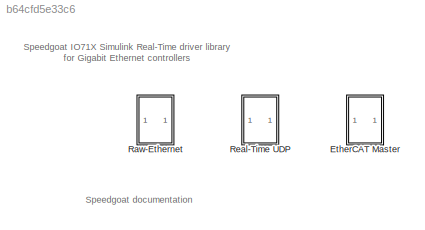
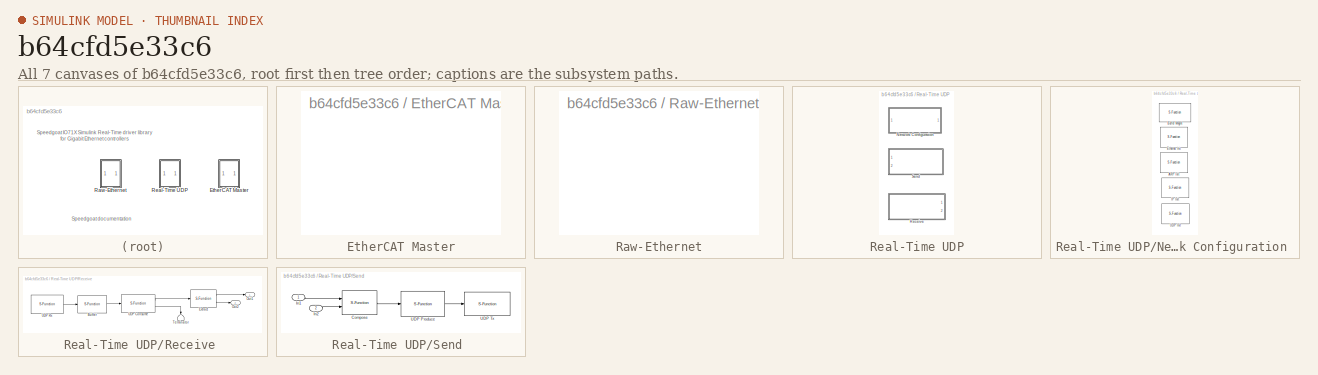
[diagram: thumbnail index - all 7 canvases of the model, root first then tree order]
MODEL slx_b64cfd5e33c6
KIND library
BLOCK [SubSystem] EtherCAT Master
  FunctionWithSeparateData = off
  MaskHideContents = off
  MinAlgLoopOccurrences = off
  Opaque = off
  OpenFcn = xpcethercatlib
  Ports = []
  PropExecContextOutsideSubsystem = off
  RTWSystemCode = Auto
  RequestExecContextInheritance = off
BLOCK [SubSystem] Raw-Ethernet
  FunctionWithSeparateData = off
  MaskHideContents = off
  MinAlgLoopOccurrences = off
  Opaque = off
  OpenFcn = xpcethernetlib
  Ports = []
  PropExecContextOutsideSubsystem = off
  RTWSystemCode = Auto
  RequestExecContextInheritance = off
BLOCK [SubSystem] Real-Time UDP
  FunctionWithSeparateData = off
  MaskHideContents = off
  MinAlgLoopOccurrences = off
  Opaque = off
  Ports = []
  PropExecContextOutsideSubsystem = off
  RTWSystemCode = Auto
  RequestExecContextInheritance = off
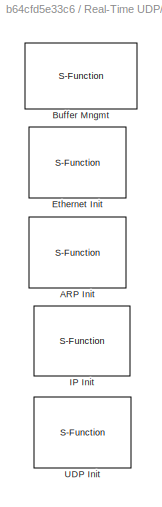
BLOCK [SubSystem] Real-Time UDP/Network Configuration 
  FunctionWithSeparateData = off
  MaskHideContents = off
  MinAlgLoopOccurrences = off
  Opaque = off
  Ports = []
  PropExecContextOutsideSubsystem = off
  RTWSystemCode = Auto
  RequestExecContextInheritance = off
BLOCK [S-Function] Real-Time UDP/Network Configuration /ARP Init 
  EnableBusSupport = off
  FunctionName = xpcdebugarpinit
  Parameters = Stats, Interface, IpAddress, SubnetMask, Gateway, EthernetId, Flags, BlockId, Retry, Timeout, Expiration, StaticAddressListIp, StaticAddressListMac, DiscoveryList, MulticastList, SampleTime
  Ports = []
  Priority = 0
BLOCK [S-Function] Real-Time UDP/Network Configuration /Buffer Mngmt 
  EnableBusSupport = off
  FunctionName = xpcnb
  Parameters = pool_sizes, SampleTime, ShowTune
  Ports = []
  Priority = -1
BLOCK [S-Function] Real-Time UDP/Network Configuration /Ethernet Init 
  EnableBusSupport = off
  FunctionName = xpcetherinit
  Parameters = ID, Driver, Bus, Slot, VendorID, DeviceID, AddressSource, mac, TxSA, RxPromiscuous, RxBad, RxShort, MaxMTU, TxThreshold, TxBuffers, RxBuffers, ShowTune, numMulti, multicast,   NumRxBlks, SampleTime
  Ports = []
  Priority = -1
BLOCK [S-Function] Real-Time UDP/Network Configuration /IP Init 
  EnableBusSupport = off
  FunctionName = xpcdebugipinit
  Parameters = Stats, Group, ArpId, IpAddress, SubnetMask, DefaultGateway, DefaultInterface, Flags, ToS, StartingId, TTL, SampleTime
  Ports = []
  Priority = 1
BLOCK [S-Function] Real-Time UDP/Network Configuration /UDP Init 
  EnableBusSupport = off
  FunctionName = xpcdebugudpinit
  Parameters = Stats, Group, StartingPort, Flags, SampleTime
  Ports = []
  Priority = 2
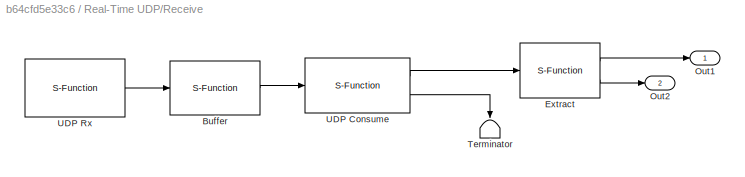
BLOCK [SubSystem] Real-Time UDP/Receive 
  FunctionWithSeparateData = off
  MaskHideContents = off
  MinAlgLoopOccurrences = off
  Opaque = off
  Ports = [0, 2]
  PropExecContextOutsideSubsystem = off
  RTWSystemCode = Auto
  RequestExecContextInheritance = off
BLOCK [S-Function] Real-Time UDP/Receive /Buffer 
  EnableBusSupport = off
  FunctionName = xpcnbbuffer
  Parameters = chainSize, bufferSize, Threshold
  Ports = [1, 1]
BLOCK [S-Function] Real-Time UDP/Receive /Extract 
  EnableBusSupport = off
  FunctionName = xpcnbextract
  Parameters = packetSize
  Ports = [1, 2]
BLOCK [Outport] Real-Time UDP/Receive /Out1
  IconDisplay = Port number
  OutDataTypeStr = uint8
BLOCK [Outport] Real-Time UDP/Receive /Out2
  IconDisplay = Port number
  OutDataTypeStr = double
  Port = 2
BLOCK [Terminator] Real-Time UDP/Receive /Terminator
BLOCK [S-Function] Real-Time UDP/Receive /UDP Consume 
  EnableBusSupport = off
  FunctionName = xpcudpconsume
  Parameters = Group, VectorSize, SampleTime
  Ports = [1, 2]
BLOCK [S-Function] Real-Time UDP/Receive /UDP Rx 
  EnableBusSupport = off
  FunctionName = xpcudprx
  Parameters = Group, SourceAddress, sip, LocalPort, lup, SampleTime
  Ports = [0, 1]
  Priority = 5
BLOCK [SubSystem] Real-Time UDP/Send 
  FunctionWithSeparateData = off
  MaskHideContents = off
  MinAlgLoopOccurrences = off
  Opaque = off
  Ports = [2]
  PropExecContextOutsideSubsystem = off
  RTWSystemCode = Auto
  RequestExecContextInheritance = off
BLOCK [S-Function] Real-Time UDP/Send /Compose 
  EnableBusSupport = off
  FunctionName = xpcnbcompose
  Ports = [2, 1]
BLOCK [Inport] Real-Time UDP/Send /In1
  IconDisplay = Port number
  OutDataTypeStr = uint8
BLOCK [Inport] Real-Time UDP/Send /In2
  IconDisplay = Port number
  OutDataTypeStr = double
  Port = 2
BLOCK [S-Function] Real-Time UDP/Send /UDP Produce 
  EnableBusSupport = off
  FunctionName = xpcudpproduce
  Parameters = Group, SrcIp, sip, DstIp, dip, LocPort, lup, RemPort, rup, SampleTime
  Ports = [1, 1]
  Priority = 5
BLOCK [S-Function] Real-Time UDP/Send /UDP Tx 
  EnableBusSupport = off
  FunctionName = xpcudptx
  Parameters = Group, TTL, ToS, SampleTime
  Ports = [1]
  Priority = 5
ANNOTATION (root): Speedgoat IO71X Simulink Real-Time driver library for Gigabit Ethernet controllers
ANNOTATION (root): Speedgoat documentation
LINE Real-Time UDP/Receive /Buffer :1 -> Real-Time UDP/Receive /UDP Consume :1
LINE Real-Time UDP/Receive /Extract :1 -> Real-Time UDP/Receive /Out1:1
LINE Real-Time UDP/Receive /Extract :2 -> Real-Time UDP/Receive /Out2:1
LINE Real-Time UDP/Receive /UDP Consume :1 -> Real-Time UDP/Receive /Extract :1
LINE Real-Time UDP/Receive /UDP Consume :2 -> Real-Time UDP/Receive /Terminator:1
LINE Real-Time UDP/Receive /UDP Rx :1 -> Real-Time UDP/Receive /Buffer :1
LINE Real-Time UDP/Send /Compose :1 -> Real-Time UDP/Send /UDP Produce :1
LINE Real-Time UDP/Send /In1:1 -> Real-Time UDP/Send /Compose :1
LINE Real-Time UDP/Send /In2:1 -> Real-Time UDP/Send /Compose :2
LINE Real-Time UDP/Send /UDP Produce :1 -> Real-Time UDP/Send /UDP Tx :1
